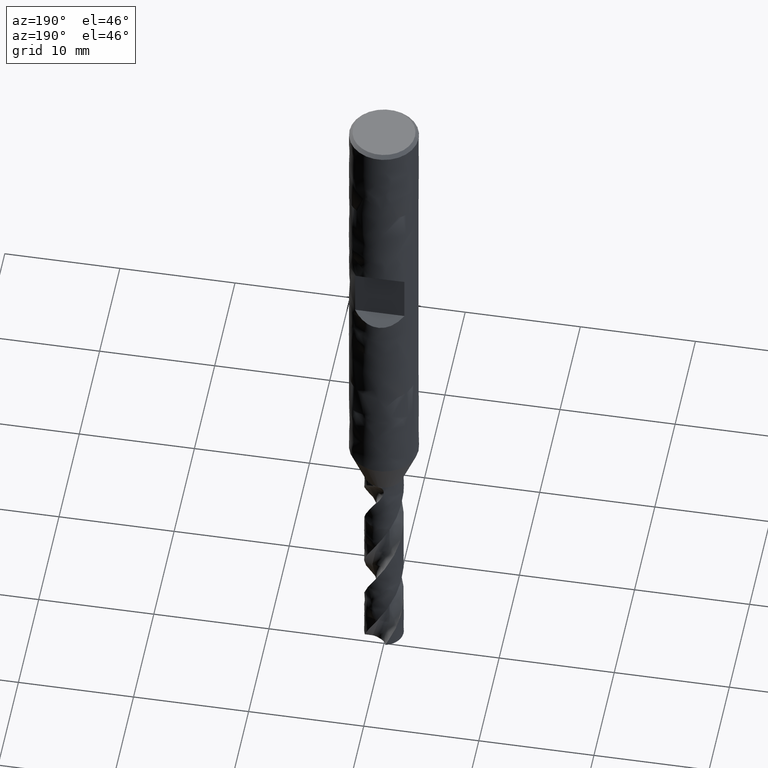
[diagram: clean part render]
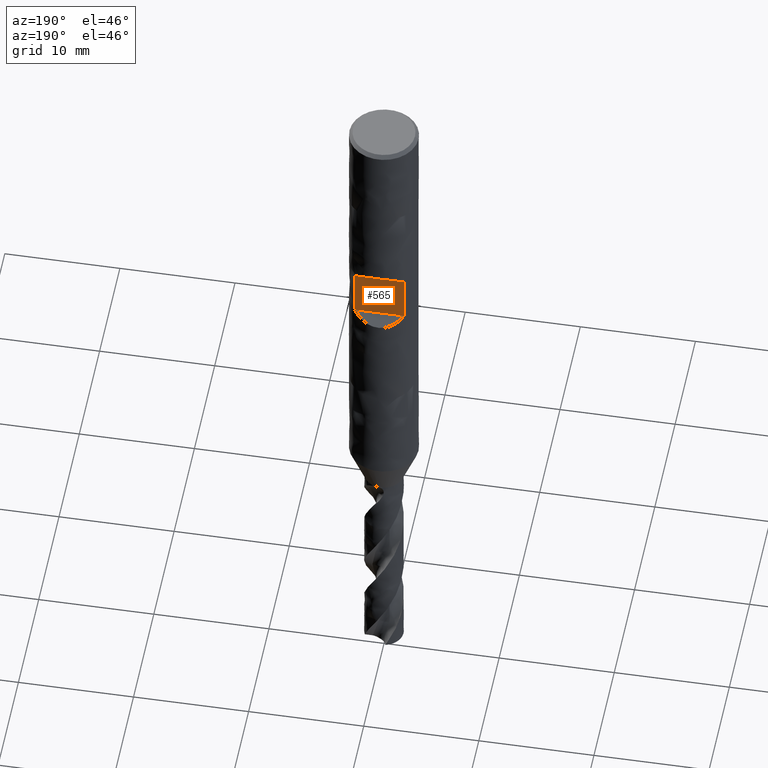
[diagram: same view with one face highlighted and labeled with its STEP entity id]
A machine part, auxiliary view. The second image highlights one B-rep face of the part: STEP entity #565.
In plain terms, the highlighted planar face has unit normal (0, 1, 0).
Its self-contained STEP definition (entity closure, byte-faithful):
#379 = VERTEX_POINT('', #380);
#380 = CARTESIAN_POINT('', (-2.14242852856285, 2.1, -15.9));
#381 = VERTEX_POINT('', #382);
#382 = CARTESIAN_POINT('', (2.14242852856286, 2.1, -15.9));
#458 = EDGE_CURVE('', #379, #459, #461, .T.);
#459 = VERTEX_POINT('', #460);
#460 = CARTESIAN_POINT('', (-2.14242852856285, 2.1, -20.1));
#461 = LINE('', #462, #463);
#462 = CARTESIAN_POINT('', (-2.14242852856285, 2.1, -15.9));
#463 = VECTOR('', #464, 4.2);
#464 = DIRECTION('', (0., 0., -4.2));
#467 = VERTEX_POINT('', #468);
#468 = CARTESIAN_POINT('', (2.14242852856286, 2.1, -20.1));
#541 = EDGE_CURVE('', #381, #467, #542, .T.);
#542 = LINE('', #543, #544);
#543 = CARTESIAN_POINT('', (2.14242852856286, 2.1, -15.9));
#544 = VECTOR('', #545, 4.2);
#545 = DIRECTION('', (0., 4.44089209850063E-16, -4.2));
#565 = ADVANCED_FACE('', (#566), #582, .T.);
#566 = FACE_OUTER_BOUND('', #567, .T.);
#567 = EDGE_LOOP('', (#568, #569, #575, #576));
#568 = ORIENTED_EDGE('', *, *, #541, .T.);
#569 = ORIENTED_EDGE('', *, *, #570, .T.);
#570 = EDGE_CURVE('', #467, #459, #571, .T.);
#571 = LINE('', #572, #573);
#572 = CARTESIAN_POINT('', (2.14242852856286, 2.1, -20.1));
#573 = VECTOR('', #574, 4.28485705712571);
#574 = DIRECTION('', (-4.28485705712571, 4.44089209850063E-16, 0.));
#575 = ORIENTED_EDGE('', *, *, #458, .F.);
#576 = ORIENTED_EDGE('', *, *, #577, .F.);
#577 = EDGE_CURVE('', #381, #379, #578, .T.);
#578 = LINE('', #579, #580);
#579 = CARTESIAN_POINT('', (2.14242852856286, 2.1, -15.9));
#580 = VECTOR('', #581, 4.28485705712571);
#581 = DIRECTION('', (-4.28485705712571, 4.44089209850063E-16, 0.));
#582 = PLANE('', #583);
#583 = AXIS2_PLACEMENT_3D('', #584, #585, #586);
#584 = CARTESIAN_POINT('', (3., 2.1, -20.1));
#585 = DIRECTION('', (0., 1., 1.05735526154777E-16));
#586 = DIRECTION('', (-1., 0., 0.));